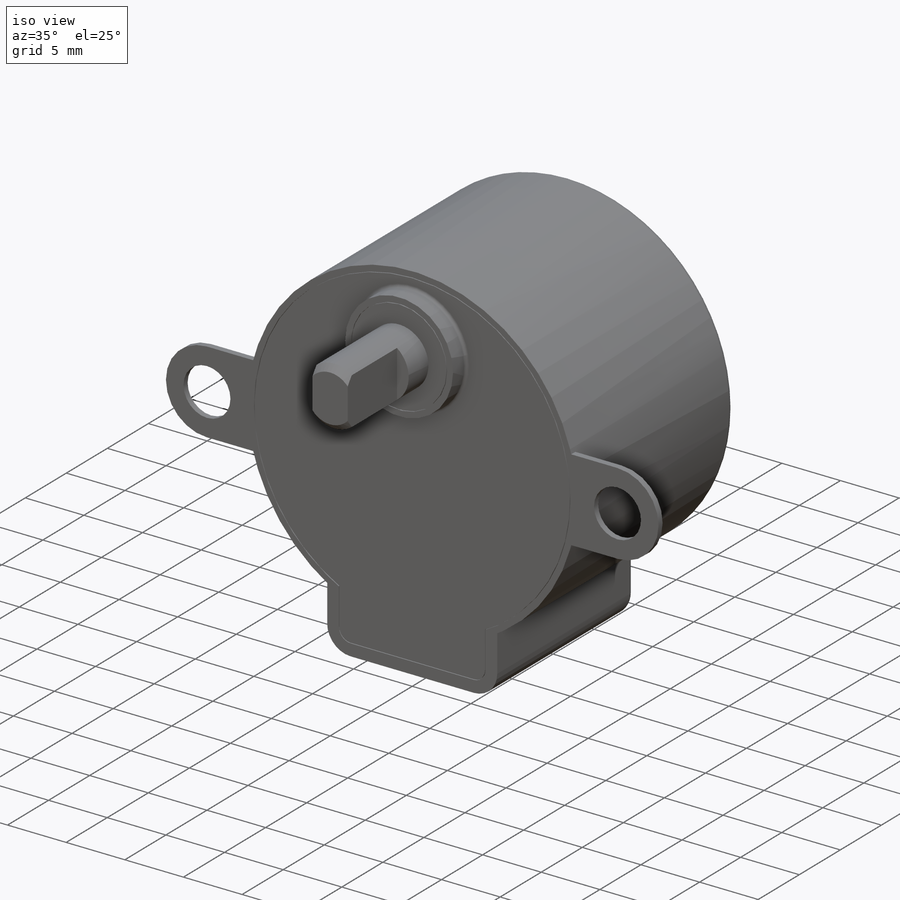
[diagram: iso view]
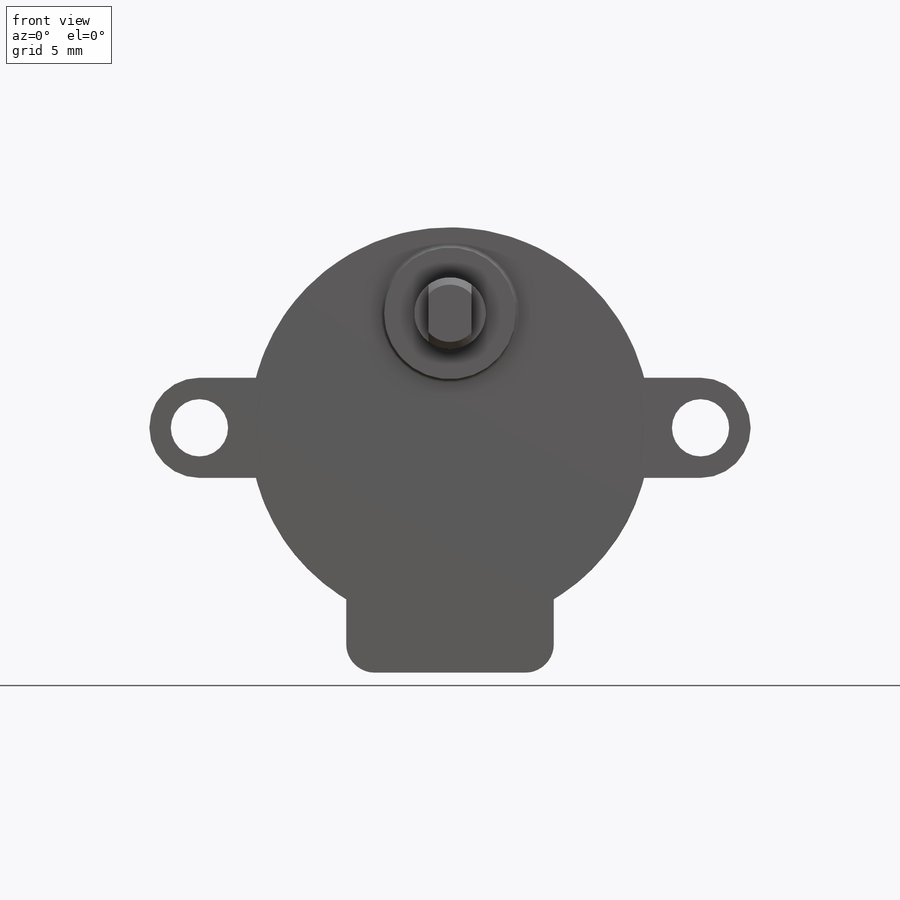
[diagram: front view]
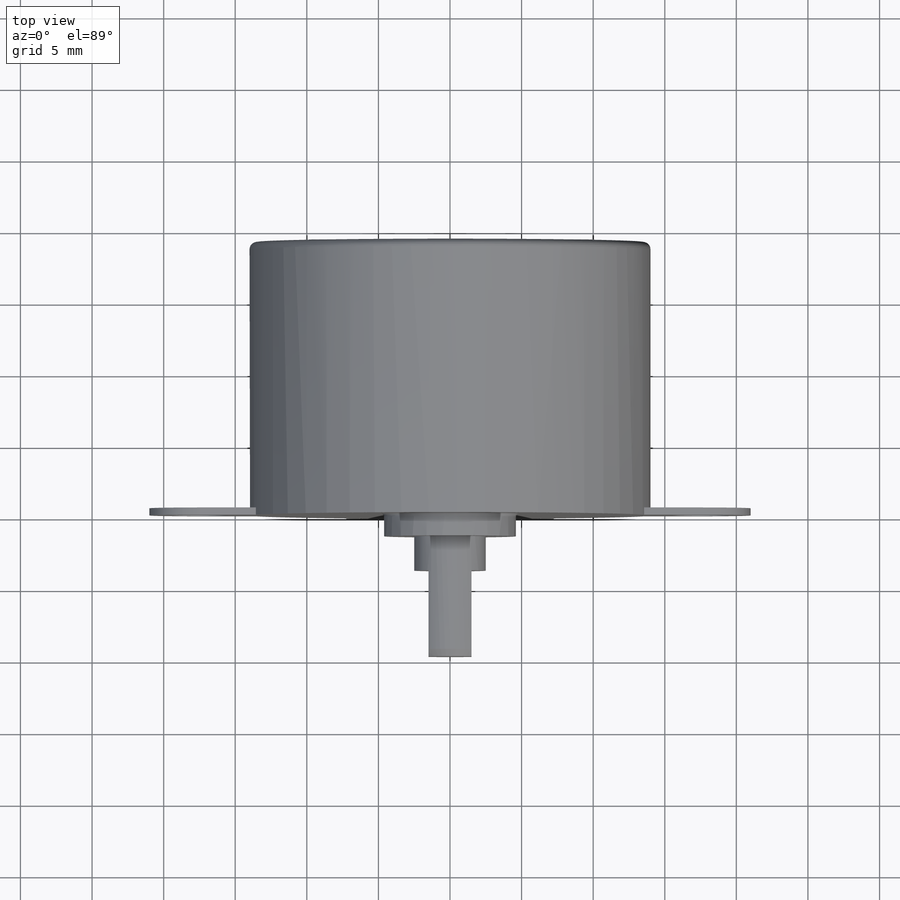
[diagram: top view]
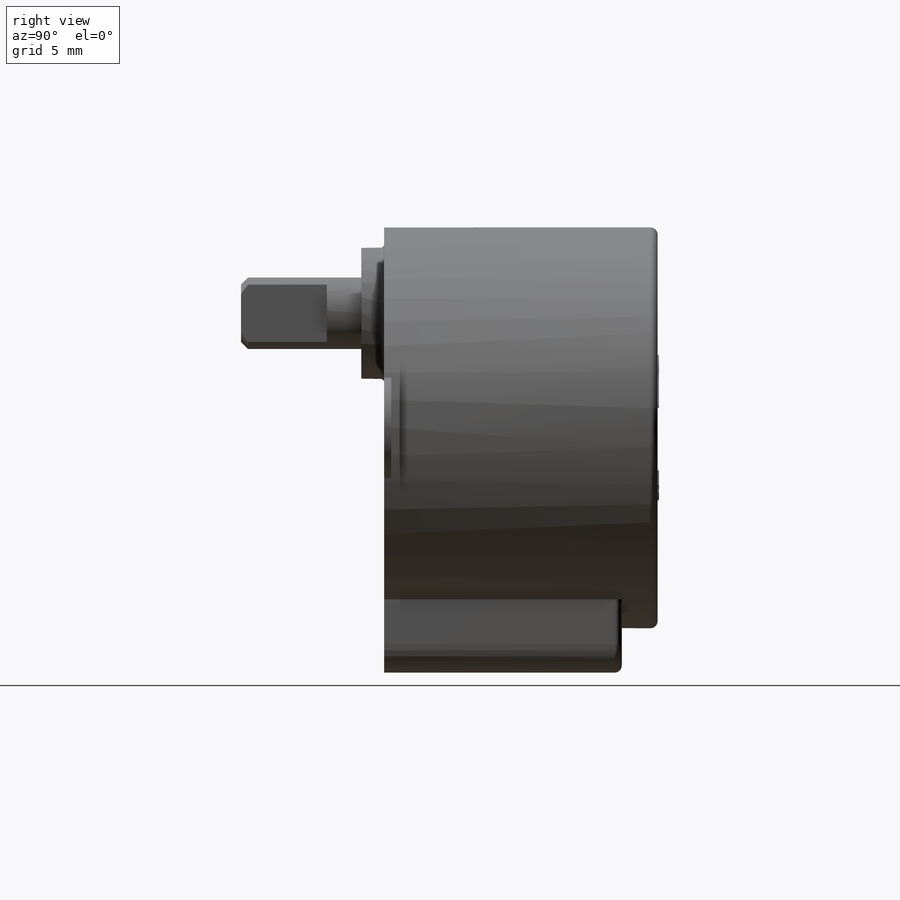
[diagram: right view]
SOLIDWORKS PART (.sldprt)
format: sldprt  version: not decoded by parser v0  size: 736,768 bytes
history: native  units: mm
features: sketch x14, extrude x7, cut_extrude x5, fillet x4, plane x3, mirror x2, material x1, chamfer x1 (+10 scaffold rows collapsed)
feature tree (47):
  scaffold x10  (default folders/planes/origin — collapsed)
  material  "ASTM A36 Acero"
  plane  "Alzado"
  plane  "Planta"
  plane  "Vista lateral"
  sketch  "Croquis1"  dims[D1=28.0mm]
  extrude  "Saliente-Extruir1"  Depth=19.1mm
  sketch  "Croquis2"  dims[c1.D1=~3.833433mm c1.D2=3.5mm c1.D3=4.0mm c2.D1=35.0mm]
  extrude  "Saliente-Extruir2"  Depth=0.5mm
  mirror  "Simetría1"
  sketch  "Croquis3"  dims[D1=0.5mm]
  sketch  "Croquis4"  dims[D1=14.5mm]
  cut_extrude  "Cortar-Extruir1"  Depth=16.6mm
  sketch  "Croquis5"  dims[D1=17.1mm]
  extrude  "Saliente-Extruir3"  [1 undecoded]
  fillet  "Redondeo1"  Radius=2mm
  sketch  "Croquis6"  dims[D1=0.0mm D2=1.0mm]
  cut_extrude  "Cortar-Extruir2"  Depth=1mm
  extrude  "Saliente-Extruir4"  [1 undecoded]
  sketch  "Croquis6<3>"  dims[D1=0.5mm]
  fillet  "Redondeo2"  Radius=0.5mm
  sketch  "Croquis7"  dims[D1=9.2mm D2=8.0mm]
  extrude  "Saliente-Extruir5"  Depth=1.6mm
  sketch  "Croquis8"  dims[D1=5.0mm]
  extrude  "Saliente-Extruir6"  Depth=8.4mm
  sketch  "Croquis9"  dims[D1=3.0mm]
  cut_extrude  "Cortar-Extruir3"  Depth=6mm
  fillet  "Redondeo3"  Radius=0.5mm
  fillet  "Redondeo4"  Radius=0.25mm
  sketch  "Croquis10"  dims[D1=0.5mm]
  mirror  "Línea de partición2"
  sketch  "Croquis11"  dims[D1=0.05mm]
  cut_extrude  "Cortar-Extruir4"  Depth=0.1mm
  sketch  "Croquis12"  dims[D1=0.05mm]
  cut_extrude  "Cortar-Extruir5"  Depth=0.1mm
  sketch  "Croquis14"  dims[D1=25.0mm D2=1.5mm D3=15.0mm D4=5.0mm]
  extrude  "Saliente-Extruir7"  Depth=0.1mm
  chamfer  "Chaflán1"  Distance=0.5mm Angle=45deg
decode coverage: 29 of 33 modeling features carry decoded parameters
note: ~ marks probable driven/reference dimensions
note: 2 parameter values undecoded
note: suppression state not decoded; provenance and decode notes live in map.json
